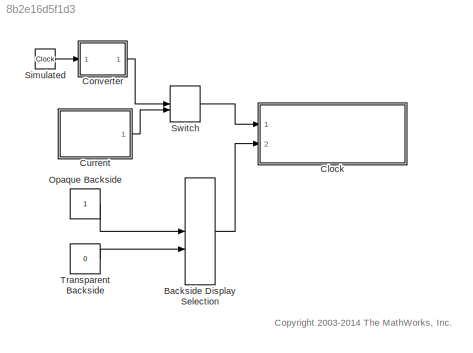
MODEL slx_8b2e16d5f1d3
KIND model
CONFIG AbsTol = auto
CONFIG FixedStep = auto
CONFIG MaxStep = auto
CONFIG MinStep = auto
CONFIG RelTol = 1e-3
CONFIG SampleTimeConstraint = Unconstrained
CONFIG Solver = ode45
CONFIG SolverMode = Auto
CONFIG SolverName = ode45
CONFIG StartTime = 0.0
CONFIG StopFcn = obj = findobj( 'Tag', 'emlclock_fig');\nif ~isempty(obj),\n   close(obj);\nend;
CONFIG StopTime = inf
BLOCK [ManualSwitch] Backside Display Selection
  CurrentSetting = 0
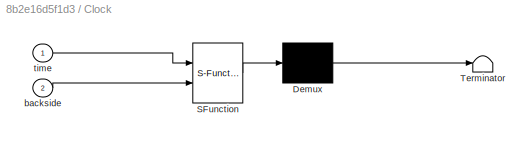
BLOCK [SubSystem] Clock
  ErrorFcn = Stateflow.Translate.translate
  PermitHierarchicalResolution = ParametersOnly
  Ports = [2]
  RequestExecContextInheritance = off
  SFBlockType = MATLAB Function
  TreatAsAtomicUnit = on
  Variant = off
BLOCK [Demux] Clock/ Demux 
  Outputs = 1
  Ports = [1, 1]
BLOCK [S-Function] Clock/ SFunction 
  EnableBusSupport = on
  FunctionName = sf_sfun
  PortCounts = [2 1]
  Ports = [2, 1]
  SFunctionDeploymentMode = off
  Tag = Stateflow S-Function eml_clock_tmp 2
BLOCK [Terminator] Clock/ Terminator 
BLOCK [Inport] Clock/backside
  IconDisplay = Port number
  Port = 2
BLOCK [Inport] Clock/time
  IconDisplay = Port number
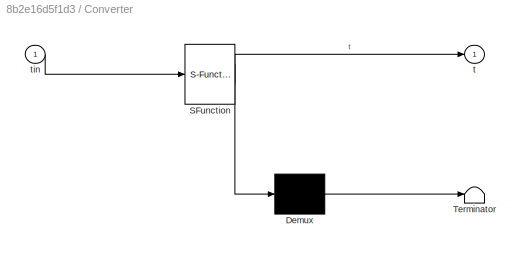
BLOCK [SubSystem] Converter
  ErrorFcn = Stateflow.Translate.translate
  PermitHierarchicalResolution = ParametersOnly
  Ports = [1, 1]
  RequestExecContextInheritance = off
  SFBlockType = MATLAB Function
  TreatAsAtomicUnit = on
  Variant = off
BLOCK [Demux] Converter/ Demux 
  Outputs = 1
  Ports = [1, 1]
BLOCK [S-Function] Converter/ SFunction 
  EnableBusSupport = on
  FunctionName = sf_sfun
  PortCounts = [1 2]
  Ports = [1, 2]
  SFunctionDeploymentMode = off
  Tag = Stateflow S-Function eml_clock_tmp 3
BLOCK [Terminator] Converter/ Terminator 
BLOCK [Outport] Converter/t
  IconDisplay = Port number
BLOCK [Inport] Converter/tin
  IconDisplay = Port number
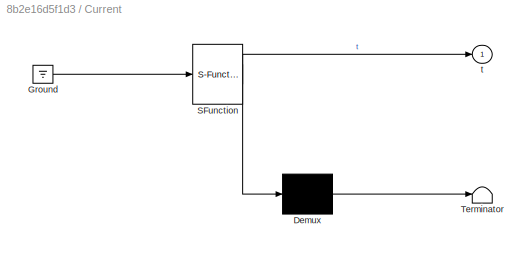
BLOCK [SubSystem] Current
  ErrorFcn = Stateflow.Translate.translate
  PermitHierarchicalResolution = ParametersOnly
  Ports = [0, 1]
  RequestExecContextInheritance = off
  SFBlockType = MATLAB Function
  TreatAsAtomicUnit = on
  Variant = off
BLOCK [Demux] Current/ Demux 
  Outputs = 1
  Ports = [1, 1]
BLOCK [Ground] Current/ Ground 
BLOCK [S-Function] Current/ SFunction 
  EnableBusSupport = on
  FunctionName = sf_sfun
  PortCounts = [1 2]
  Ports = [1, 2]
  SFunctionDeploymentMode = off
  Tag = Stateflow S-Function eml_clock_tmp 1
BLOCK [Terminator] Current/ Terminator 
BLOCK [Outport] Current/t
  IconDisplay = Port number
BLOCK [Constant] Opaque Backside
  OutDataTypeStr = double
BLOCK [Clock] Simulated
BLOCK [ManualSwitch] Switch
  CurrentSetting = 0
BLOCK [Constant] Transparent Backside
  OutDataTypeStr = double
  Value = 0
ANNOTATION (root): <copyright redacted>
LINE Backside Display Selection:1 -> Clock:2
LINE Converter:1 -> Switch:1
LINE Current:1 -> Switch:2
LINE Opaque Backside:1 -> Backside Display Selection:1
LINE Simulated:1 -> Converter:1
LINE Switch:1 -> Clock:1
LINE Transparent Backside:1 -> Backside Display Selection:2
CHART Current states=1 transitions=1
  STATE_LABEL 'eML_blk_kernel()'
  STATE_LABEL "SCRIPT:\nfunction t = time\ncoder.extrinsic('clock','fix');\nt = [0,0,0,0,0,0];\nt = fix(clock);\nt(4) = t(4) + t(5)/60;"
CHART Clock states=1 transitions=1
  STATE_LABEL 'eML_blk_kernel()'
  STATE_LABEL "SCRIPT:\nfunction emlclock(time,backside)\npersistent initialized;\npersistent fig;\npersistent fig_axes;\npersistent bag_board_front;\npersistent bag_board_back;\npersistent bag_hands;\npersistent hour_hand_id;\npersistent minute_hand_id;\npersistent second_hand_id;\npersistent front_visible;\npersistent iteration;\npersistent old_backside;\npersistent old_front_visible;\n\ncoder.extrinsic('figure','set','hold',...<+3608ch>"
CHART Converter states=1 transitions=1
  STATE_LABEL 'eML_blk_kernel()'
  STATE_LABEL 'SCRIPT:\nfunction t = conv(tin)\nxhrs = rem(tin / 3600,24);\nxmin = rem(tin / 60,60);\nxsec = rem(tin,60);\nt = [0,0,0,xhrs,xmin,xsec];\n'
